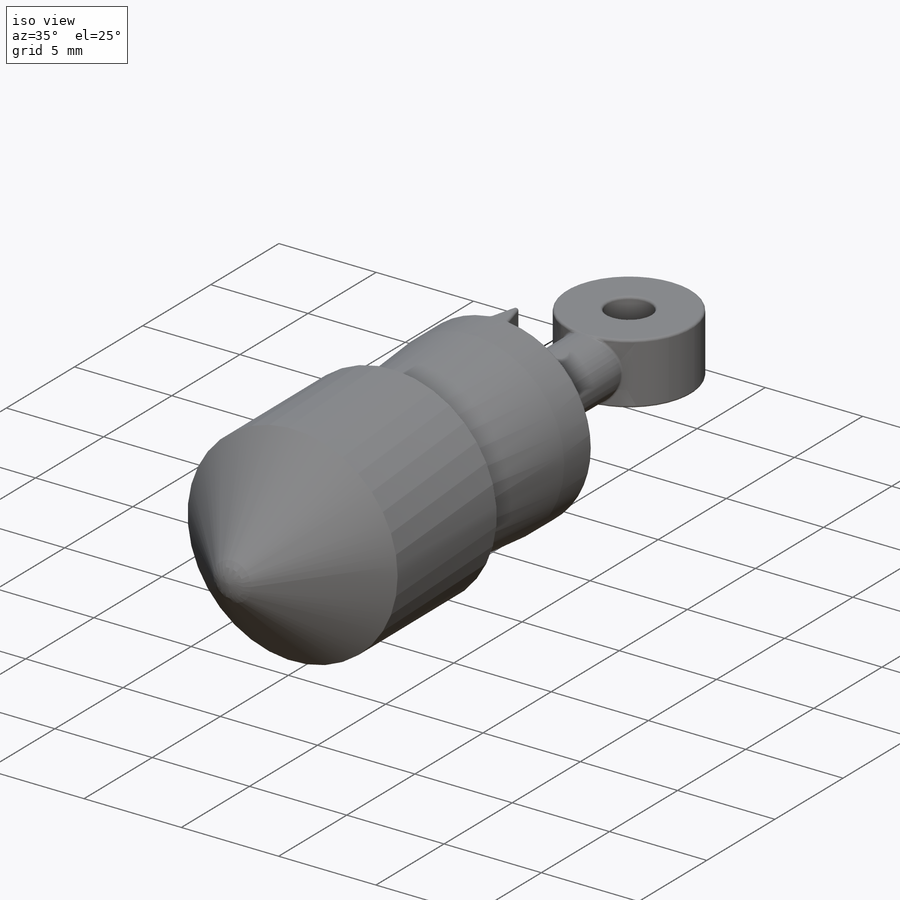
[diagram: iso view]
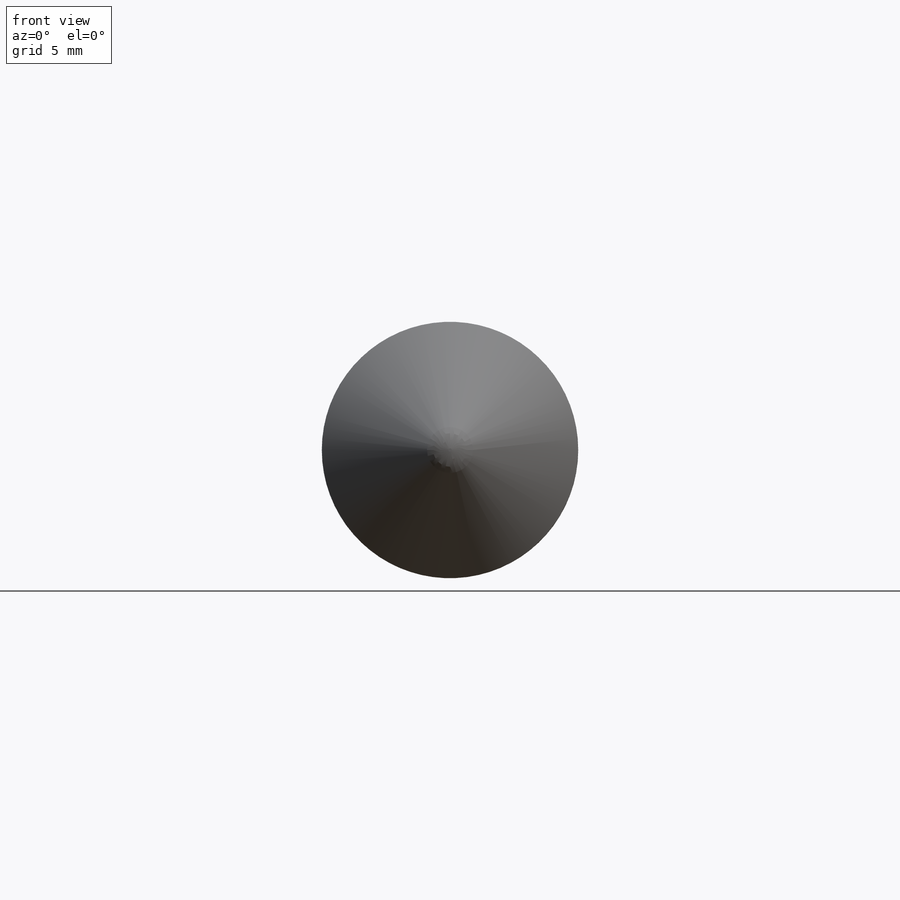
[diagram: front view]
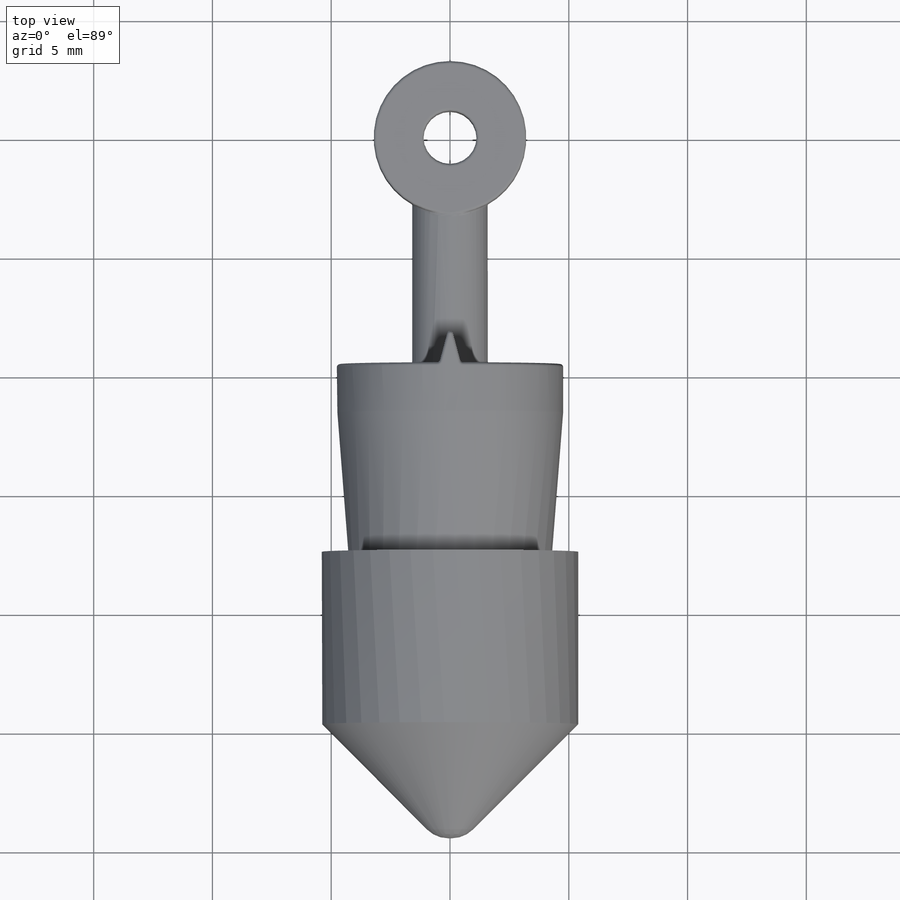
[diagram: top view]
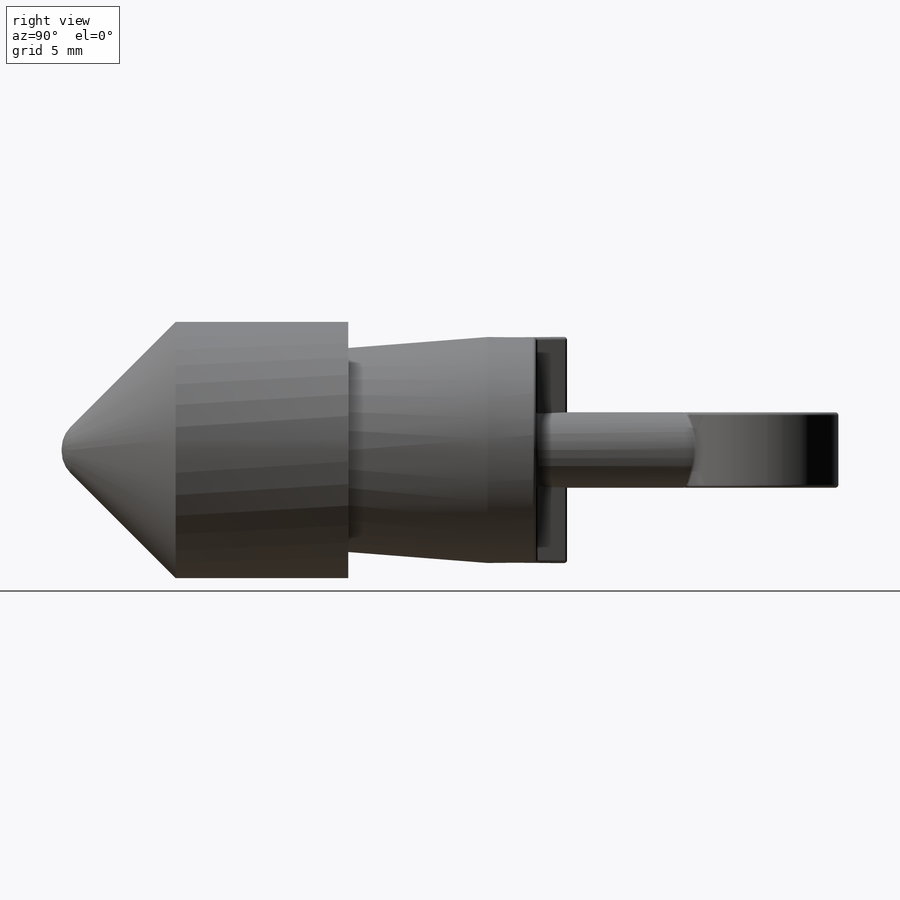
[diagram: right view]
SOLIDWORKS PART (.sldprt)
format: sldprt  version: not decoded by parser v0  size: 445,440 bytes
history: native  units: mm
features: sketch x8, extrude x7, fillet x3, material x1, cut_extrude x1 (+16 scaffold rows collapsed)
feature tree (36):
  scaffold x16  (default folders/planes/origin — collapsed)
  material  "Stainless Steel (ferritic)"
  sketch  "Sketch1"  dims[D1=3.175mm]
  extrude  "Extrude1"  Depth=9.525mm
  sketch  "Sketch5"
  extrude  "Extrude2"  Depth=1.5875mm
  sketch  "Sketch6"  dims[D1=2.2352mm]
  cut_extrude  "Extrude3"  [1 undecoded]
  fillet  "Fillet1"  Radius=0.127mm
  sketch  "Sketch7"  dims[D1=9.525mm]
  extrude  "Extrude4"  Depth=2.032mm
  sketch  "Sketch8"  dims[D1=9.525mm]
  extrude  "Extrude5"  Depth=5.8674mm
  sketch  "Sketch9"  dims[D1=10.795mm]
  extrude  "Extrude6"  Depth=7.2644mm
  sketch  "Sketch11"
  extrude  "Extrude8"  Depth=4.8006mm
  fillet  "Fillet6"  Radius=1.27mm
  sketch  "Sketch10"  dims[c1.D1=~2.069648mm c2.D1=15.0deg c2.D2=1.6764mm]
  extrude  "Extrude7"  [1 undecoded]
  fillet  "Fillet5"  Radius=0.127mm
decode coverage: 15 of 19 modeling features carry decoded parameters
note: ~ marks probable driven/reference dimensions
note: 2 parameter values undecoded
note: suppression state not decoded; provenance and decode notes live in map.json
